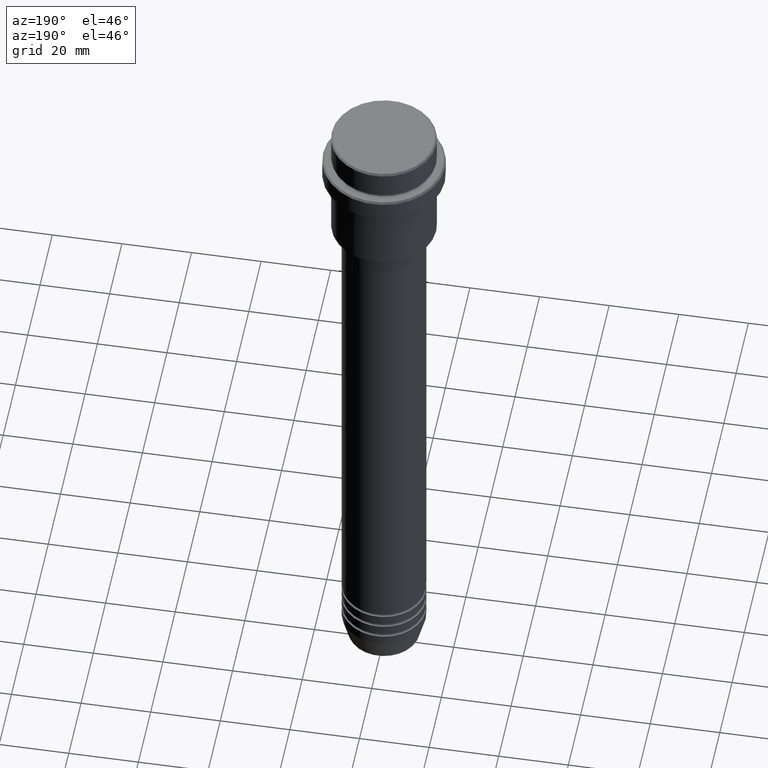
[diagram: clean part render]
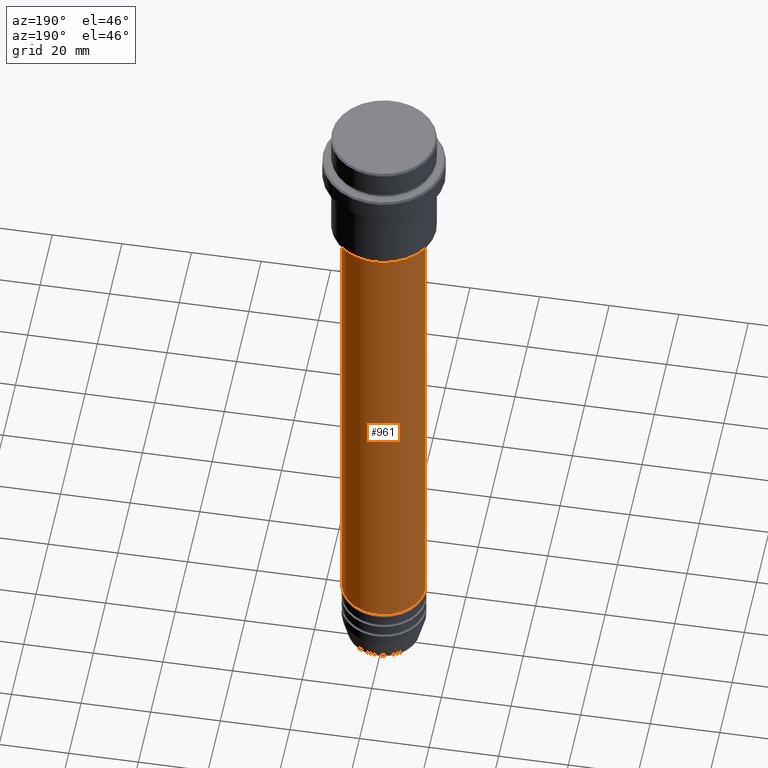
[diagram: same view with one face highlighted and labeled with its STEP entity id]
A machine part, auxiliary view. The second image highlights one B-rep face of the part: STEP entity #961.
In plain terms, the highlighted cylindrical surface (partial cylindrical patch) has radius 12 mm, axis along (-0, -0, 1).
Its self-contained STEP definition (entity closure, byte-faithful):
#25 = EDGE_CURVE ( 'NONE', #1107, #899, #196, .T. ) ;
#99 = CARTESIAN_POINT ( 'NONE',  ( -12.00000000000000000, 1.469576158976823947E-15, -181.9999999999998863 ) ) ;
#196 = CIRCLE ( 'NONE', #1018, 12.00000000000000000 ) ;
#267 = DIRECTION ( 'NONE',  ( -0.000000000000000000, -0.000000000000000000, 1.000000000000000000 ) ) ;
#337 = DIRECTION ( 'NONE',  ( -0.000000000000000000, -0.000000000000000000, 1.000000000000000000 ) ) ;
#351 = LINE ( 'NONE', #1019, #959 ) ;
#366 = CYLINDRICAL_SURFACE ( 'NONE', #794, 12.00000000000000000 ) ;
#454 = CARTESIAN_POINT ( 'NONE',  ( 0.000000000000000000, 0.000000000000000000, 0.000000000000000000 ) ) ;
#472 = CIRCLE ( 'NONE', #493, 11.99999999999999822 ) ;
#484 = VERTEX_POINT ( 'NONE', #1291 ) ;
#491 = DIRECTION ( 'NONE',  ( -0.000000000000000000, -0.000000000000000000, 1.000000000000000000 ) ) ;
#493 = AXIS2_PLACEMENT_3D ( 'NONE', #1345, #491, #1374 ) ;
#541 = CARTESIAN_POINT ( 'NONE',  ( 0.000000000000000000, 0.000000000000000000, -181.9999999999998863 ) ) ;
#544 = LINE ( 'NONE', #691, #1070 ) ;
#566 = EDGE_CURVE ( 'NONE', #1107, #1277, #544, .T. ) ;
#644 = EDGE_LOOP ( 'NONE', ( #715, #1381, #1244, #814 ) ) ;
#664 = CARTESIAN_POINT ( 'NONE',  ( 11.99999999999999822, 0.000000000000000000, -37.00000000000000711 ) ) ;
#673 = FACE_OUTER_BOUND ( 'NONE', #644, .T. ) ;
#691 = CARTESIAN_POINT ( 'NONE',  ( 12.00000000000000000, 0.000000000000000000, 0.000000000000000000 ) ) ;
#715 = ORIENTED_EDGE ( 'NONE', *, *, #25, .T. ) ;
#794 = AXIS2_PLACEMENT_3D ( 'NONE', #454, #337, #1332 ) ;
#814 = ORIENTED_EDGE ( 'NONE', *, *, #566, .F. ) ;
#899 = VERTEX_POINT ( 'NONE', #99 ) ;
#911 = DIRECTION ( 'NONE',  ( -0.000000000000000000, -0.000000000000000000, 1.000000000000000000 ) ) ;
#959 = VECTOR ( 'NONE', #911, 1000.000000000000000 ) ;
#961 = ADVANCED_FACE ( 'NONE', ( #673 ), #366, .T. ) ;
#1018 = AXIS2_PLACEMENT_3D ( 'NONE', #541, #1265, #1187 ) ;
#1019 = CARTESIAN_POINT ( 'NONE',  ( -12.00000000000000000, 1.469576158976823947E-15, 0.000000000000000000 ) ) ;
#1044 = CARTESIAN_POINT ( 'NONE',  ( 12.00000000000000000, 0.000000000000000000, -181.9999999999998863 ) ) ;
#1050 = EDGE_CURVE ( 'NONE', #899, #484, #351, .T. ) ;
#1070 = VECTOR ( 'NONE', #267, 1000.000000000000000 ) ;
#1082 = EDGE_CURVE ( 'NONE', #1277, #484, #472, .T. ) ;
#1107 = VERTEX_POINT ( 'NONE', #1044 ) ;
#1187 = DIRECTION ( 'NONE',  ( 1.000000000000000000, 0.000000000000000000, 0.000000000000000000 ) ) ;
#1244 = ORIENTED_EDGE ( 'NONE', *, *, #1082, .F. ) ;
#1265 = DIRECTION ( 'NONE',  ( -0.000000000000000000, -0.000000000000000000, 1.000000000000000000 ) ) ;
#1277 = VERTEX_POINT ( 'NONE', #664 ) ;
#1291 = CARTESIAN_POINT ( 'NONE',  ( -11.99999999999999822, 1.469576158976823750E-15, -37.00000000000000711 ) ) ;
#1332 = DIRECTION ( 'NONE',  ( 1.000000000000000000, 0.000000000000000000, 0.000000000000000000 ) ) ;
#1345 = CARTESIAN_POINT ( 'NONE',  ( 0.000000000000000000, 0.000000000000000000, -37.00000000000000711 ) ) ;
#1374 = DIRECTION ( 'NONE',  ( 1.000000000000000000, 0.000000000000000000, 0.000000000000000000 ) ) ;
#1381 = ORIENTED_EDGE ( 'NONE', *, *, #1050, .T. ) ;